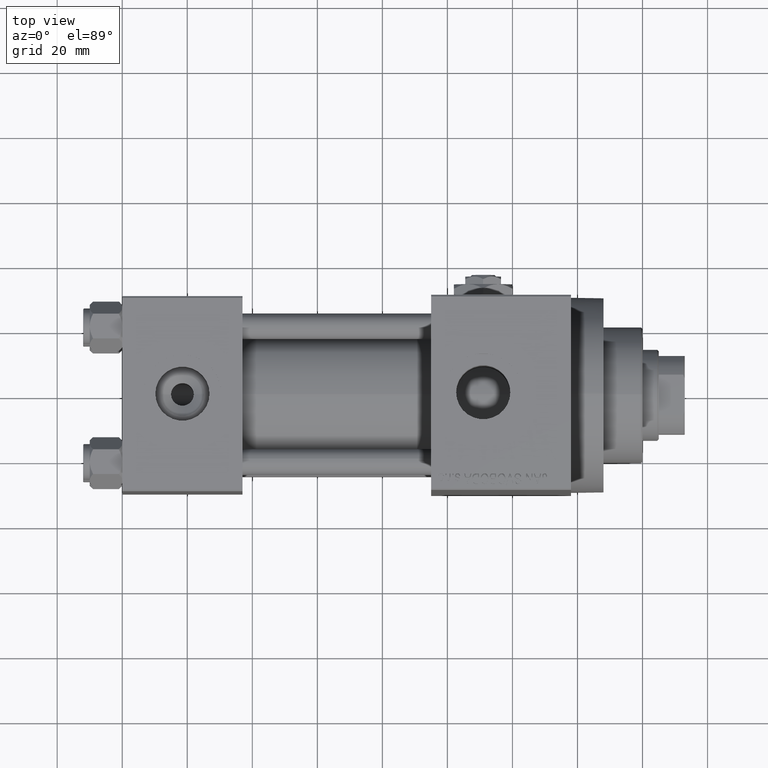
[diagram: clean part render]
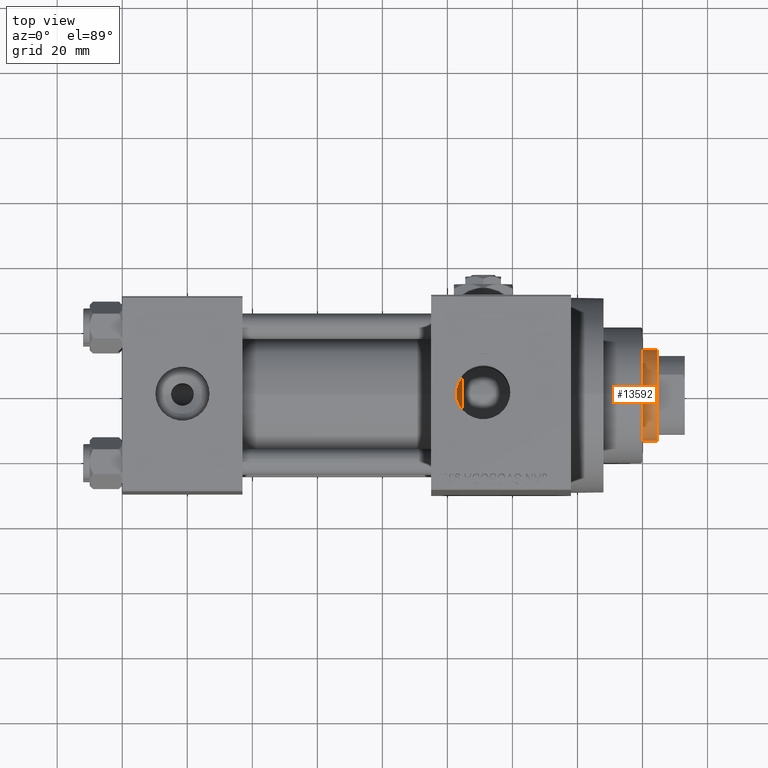
[diagram: same view with one face highlighted and labeled with its STEP entity id]
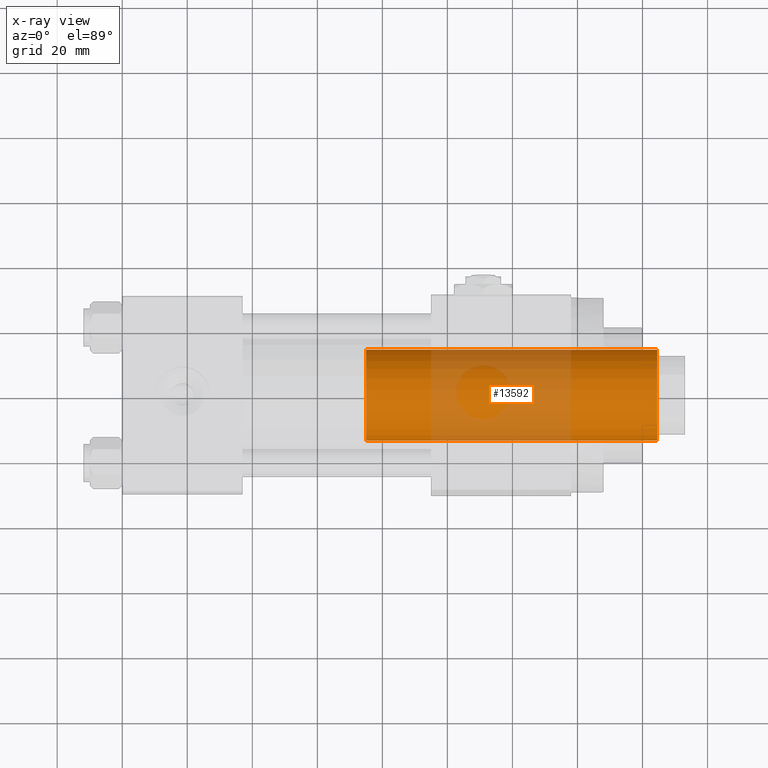
[diagram: x-ray of the same camera — body ghosted, the highlighted face saturated]
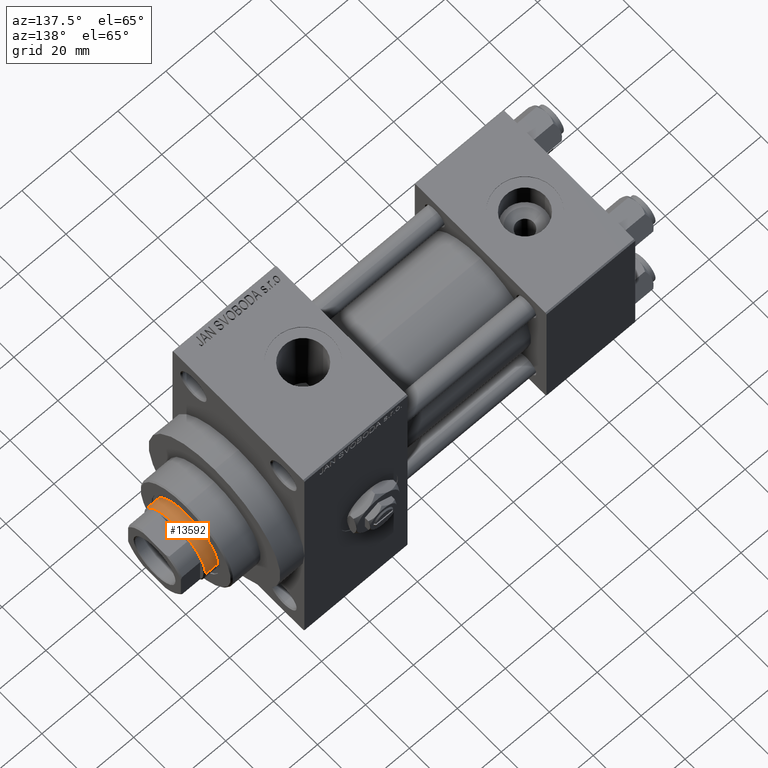
[diagram: same view with one face highlighted and labeled with its STEP entity id]
A machine part, top view. The second image highlights one B-rep face of the part: STEP entity #13592.
The next image is the same camera in x-ray: the body ghosted, the highlighted face saturated — about 40% of this face is hidden behind the body in this view.
A second angle (auxiliary view) of the same face is appended — the face is thin or edge-on in the first view.
In plain terms, the highlighted cylindrical surface (partial cylindrical patch) has radius 14 mm, axis along (-1, 0, 0).
Its self-contained STEP definition (entity closure, byte-faithful):
#26 = DIRECTION ( 'NONE',  ( 0.000000000000000000, 0.000000000000000000, -1.000000000000000000 ) ) ;
#3903 = EDGE_CURVE ( 'NONE', #18902, #22528, #10589, .T. ) ;
#7122 = CARTESIAN_POINT ( 'NONE',  ( 14.00000000000000178, 1.714505518806294441E-15, 38.00000000000000000 ) ) ;
#7783 = VECTOR ( 'NONE', #30080, 1000.000000000000000 ) ;
#10589 = CIRCLE ( 'NONE', #48542, 14.00000000000000178 ) ;
#12167 = DIRECTION ( 'NONE',  ( 1.000000000000000000, 0.000000000000000000, 0.000000000000000000 ) ) ;
#13592 = ADVANCED_FACE ( 'NONE', ( #44924 ), #33295, .T. ) ;
#13648 = ORIENTED_EDGE ( 'NONE', *, *, #48048, .T. ) ;
#14724 = CARTESIAN_POINT ( 'NONE',  ( 0.000000000000000000, 0.000000000000000000, 128.0000000000000000 ) ) ;
#14738 = LINE ( 'NONE', #33310, #7783 ) ;
#15811 = DIRECTION ( 'NONE',  ( -0.000000000000000000, -0.000000000000000000, -1.000000000000000000 ) ) ;
#18190 = DIRECTION ( 'NONE',  ( 0.000000000000000000, 0.000000000000000000, 1.000000000000000000 ) ) ;
#18902 = VERTEX_POINT ( 'NONE', #24768 ) ;
#19087 = DIRECTION ( 'NONE',  ( 1.000000000000000000, 0.000000000000000000, 0.000000000000000000 ) ) ;
#19522 = LINE ( 'NONE', #34619, #37431 ) ;
#21421 = DIRECTION ( 'NONE',  ( -1.000000000000000000, 0.000000000000000000, 0.000000000000000000 ) ) ;
#22528 = VERTEX_POINT ( 'NONE', #7122 ) ;
#24768 = CARTESIAN_POINT ( 'NONE',  ( -14.00000000000000178, 0.000000000000000000, 38.00000000000000000 ) ) ;
#25022 = EDGE_CURVE ( 'NONE', #29245, #48429, #42030, .T. ) ;
#29245 = VERTEX_POINT ( 'NONE', #29367 ) ;
#29367 = CARTESIAN_POINT ( 'NONE',  ( 14.00000000000000178, 1.714505518806294441E-15, 127.5000000000000853 ) ) ;
#30080 = DIRECTION ( 'NONE',  ( -0.000000000000000000, -0.000000000000000000, -1.000000000000000000 ) ) ;
#33200 = CARTESIAN_POINT ( 'NONE',  ( 0.000000000000000000, 0.000000000000000000, 127.5000000000000853 ) ) ;
#33295 = CYLINDRICAL_SURFACE ( 'NONE', #38597, 14.00000000000000178 ) ;
#33310 = CARTESIAN_POINT ( 'NONE',  ( 14.00000000000000178, 1.714505518806294441E-15, 128.0000000000000000 ) ) ;
#33465 = EDGE_CURVE ( 'NONE', #29245, #22528, #14738, .T. ) ;
#34619 = CARTESIAN_POINT ( 'NONE',  ( -14.00000000000000178, 0.000000000000000000, 128.0000000000000000 ) ) ;
#34885 = AXIS2_PLACEMENT_3D ( 'NONE', #33200, #26, #19087 ) ;
#36446 = EDGE_LOOP ( 'NONE', ( #42701, #45820, #13648, #37780 ) ) ;
#37255 = DIRECTION ( 'NONE',  ( -0.000000000000000000, -0.000000000000000000, -1.000000000000000000 ) ) ;
#37431 = VECTOR ( 'NONE', #15811, 1000.000000000000000 ) ;
#37780 = ORIENTED_EDGE ( 'NONE', *, *, #3903, .T. ) ;
#38597 = AXIS2_PLACEMENT_3D ( 'NONE', #14724, #37255, #21421 ) ;
#38887 = CARTESIAN_POINT ( 'NONE',  ( -14.00000000000000178, 0.000000000000000000, 127.5000000000000853 ) ) ;
#40717 = CARTESIAN_POINT ( 'NONE',  ( 0.000000000000000000, 0.000000000000000000, 38.00000000000000000 ) ) ;
#42030 = CIRCLE ( 'NONE', #34885, 14.00000000000000178 ) ;
#42701 = ORIENTED_EDGE ( 'NONE', *, *, #33465, .F. ) ;
#44924 = FACE_OUTER_BOUND ( 'NONE', #36446, .T. ) ;
#45820 = ORIENTED_EDGE ( 'NONE', *, *, #25022, .T. ) ;
#48048 = EDGE_CURVE ( 'NONE', #48429, #18902, #19522, .T. ) ;
#48429 = VERTEX_POINT ( 'NONE', #38887 ) ;
#48542 = AXIS2_PLACEMENT_3D ( 'NONE', #40717, #18190, #12167 ) ;